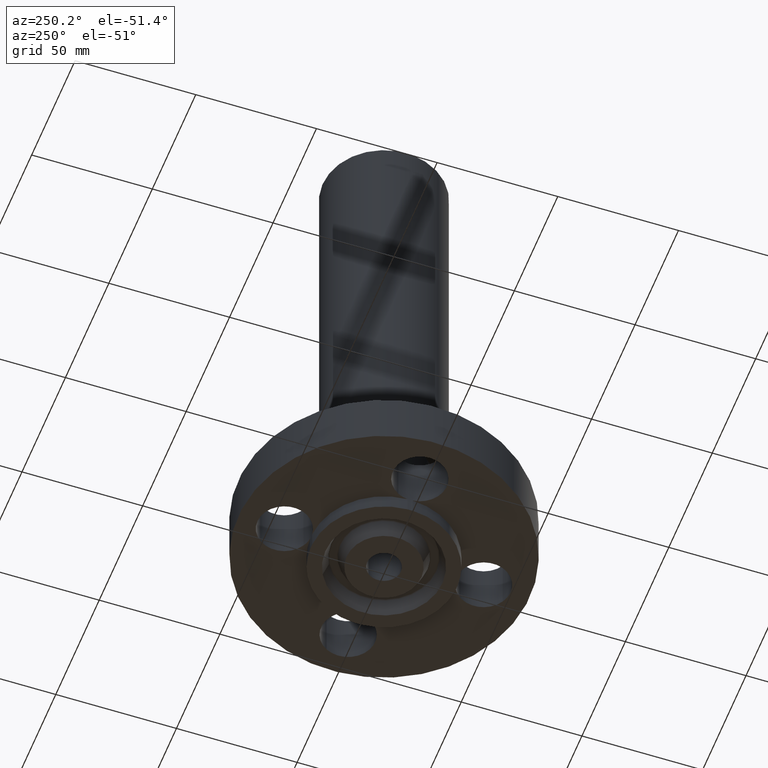
[diagram: clean part render]
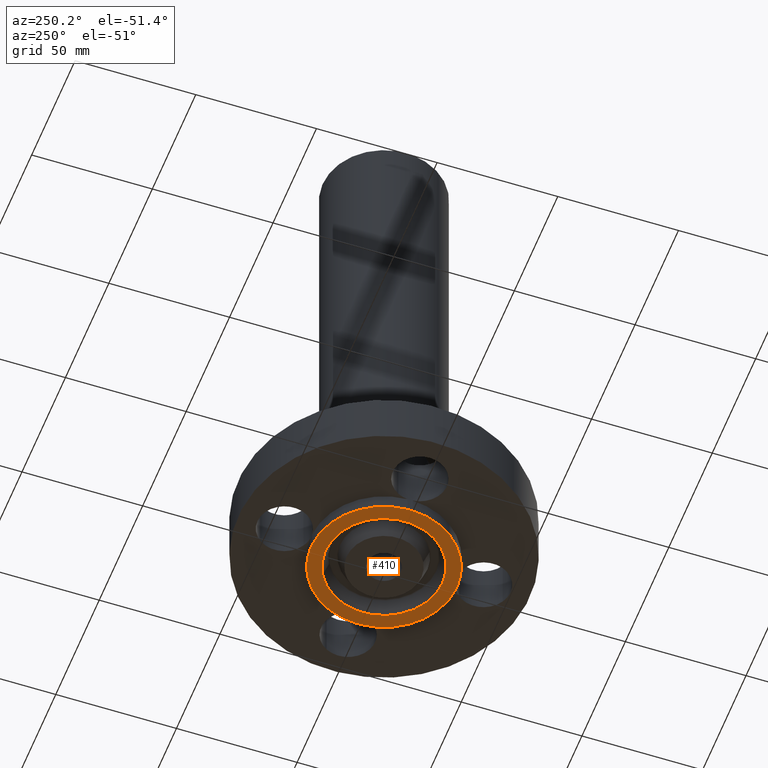
[diagram: same view with one face highlighted and labeled with its STEP entity id]
A machine part, auxiliary view. The second image highlights one B-rep face of the part: STEP entity #410.
In plain terms, the highlighted planar face has unit normal (0, 0, -1).
Its self-contained STEP definition (entity closure, byte-faithful):
#250=AXIS2_PLACEMENT_3D('Circle Axis2P3D',#248,#249,$) ;
#317=AXIS2_PLACEMENT_3D('Plane Axis2P3D',#314,#315,#316) ;
#321=AXIS2_PLACEMENT_3D('Circle Axis2P3D',#319,#320,$) ;
#330=AXIS2_PLACEMENT_3D('Circle Axis2P3D',#328,#329,$) ;
#337=AXIS2_PLACEMENT_3D('Circle Axis2P3D',#335,#336,$) ;
#344=AXIS2_PLACEMENT_3D('Circle Axis2P3D',#342,#343,$) ;
#351=AXIS2_PLACEMENT_3D('Circle Axis2P3D',#349,#350,$) ;
#358=AXIS2_PLACEMENT_3D('Circle Axis2P3D',#356,#357,$) ;
#365=AXIS2_PLACEMENT_3D('Circle Axis2P3D',#363,#364,$) ;
#370=AXIS2_PLACEMENT_3D('Circle Axis2P3D',#368,#369,$) ;
#377=AXIS2_PLACEMENT_3D('Circle Axis2P3D',#375,#376,$) ;
#394=AXIS2_PLACEMENT_3D('Circle Axis2P3D',#392,#393,$) ;
#403=AXIS2_PLACEMENT_3D('Circle Axis2P3D',#401,#402,$) ;
#245=CARTESIAN_POINT('Vertex',(1.186825,-0.0400333532821,-0.250000000001)) ;
#248=CARTESIAN_POINT('Axis2P3D Location',(1.62500000001,0.,-0.250000000001)) ;
#252=CARTESIAN_POINT('Vertex',(1.186825,0.0400333532821,-0.250000000001)) ;
#314=CARTESIAN_POINT('Axis2P3D Location',(0.,0.609500000002,-0.250000000001)) ;
#319=CARTESIAN_POINT('Axis2P3D Location',(0.,0.,-0.250000000001)) ;
#323=CARTESIAN_POINT('Vertex',(-0.0400333532821,-1.186825,-0.250000000001)) ;
#325=CARTESIAN_POINT('Vertex',(-0.569317827095,-1.04212929225,-0.250000000001)) ;
#328=CARTESIAN_POINT('Axis2P3D Location',(0.,0.,-0.250000000001)) ;
#332=CARTESIAN_POINT('Vertex',(-1.186825,-0.0400333532821,-0.250000000001)) ;
#335=CARTESIAN_POINT('Axis2P3D Location',(-1.62500000001,-1.39870617276E-016,-0.250000000001)) ;
#339=CARTESIAN_POINT('Vertex',(-1.186825,0.0400333532821,-0.250000000001)) ;
#342=CARTESIAN_POINT('Axis2P3D Location',(0.,0.,-0.250000000001)) ;
#346=CARTESIAN_POINT('Vertex',(-0.0400333532821,1.186825,-0.250000000001)) ;
#349=CARTESIAN_POINT('Axis2P3D Location',(-3.67160370348E-016,1.62500000001,-0.250000000001)) ;
#353=CARTESIAN_POINT('Vertex',(0.0400333532821,1.186825,-0.250000000001)) ;
#356=CARTESIAN_POINT('Axis2P3D Location',(0.,0.,-0.250000000001)) ;
#360=CARTESIAN_POINT('Vertex',(0.569317827095,1.04212929225,-0.250000000001)) ;
#363=CARTESIAN_POINT('Axis2P3D Location',(0.,0.,-0.250000000001)) ;
#368=CARTESIAN_POINT('Axis2P3D Location',(0.,0.,-0.250000000001)) ;
#372=CARTESIAN_POINT('Vertex',(0.0400333532821,-1.186825,-0.250000000001)) ;
#375=CARTESIAN_POINT('Axis2P3D Location',(-1.22386790116E-016,-1.62500000001,-0.250000000001)) ;
#392=CARTESIAN_POINT('Axis2P3D Location',(0.,0.,-0.250000000001)) ;
#396=CARTESIAN_POINT('Vertex',(0.457132251061,0.836774972766,-0.250000000001)) ;
#398=CARTESIAN_POINT('Vertex',(-0.457132251061,-0.836774972766,-0.250000000001)) ;
#401=CARTESIAN_POINT('Axis2P3D Location',(0.,0.,-0.250000000001)) ;
#249=DIRECTION('Axis2P3D Direction',(0.,-0.,0.0393700787402)) ;
#315=DIRECTION('Axis2P3D Direction',(0.,0.,-0.0393700787402)) ;
#316=DIRECTION('Axis2P3D XDirection',(0.0393700787402,0.,0.)) ;
#320=DIRECTION('Axis2P3D Direction',(0.,0.,-0.0393700787402)) ;
#329=DIRECTION('Axis2P3D Direction',(0.,0.,-0.0393700787402)) ;
#336=DIRECTION('Axis2P3D Direction',(0.,0.,-0.0393700787402)) ;
#343=DIRECTION('Axis2P3D Direction',(0.,0.,-0.0393700787402)) ;
#350=DIRECTION('Axis2P3D Direction',(0.,0.,-0.0393700787402)) ;
#357=DIRECTION('Axis2P3D Direction',(0.,0.,-0.0393700787402)) ;
#364=DIRECTION('Axis2P3D Direction',(0.,0.,-0.0393700787402)) ;
#369=DIRECTION('Axis2P3D Direction',(0.,0.,-0.0393700787402)) ;
#376=DIRECTION('Axis2P3D Direction',(0.,0.,-0.0393700787402)) ;
#393=DIRECTION('Axis2P3D Direction',(0.,0.,-0.0393700787402)) ;
#402=DIRECTION('Axis2P3D Direction',(0.,0.,-0.0393700787402)) ;
#381=ORIENTED_EDGE('',*,*,#327,.T.) ;
#382=ORIENTED_EDGE('',*,*,#334,.T.) ;
#383=ORIENTED_EDGE('',*,*,#341,.F.) ;
#384=ORIENTED_EDGE('',*,*,#348,.T.) ;
#385=ORIENTED_EDGE('',*,*,#355,.F.) ;
#386=ORIENTED_EDGE('',*,*,#362,.T.) ;
#387=ORIENTED_EDGE('',*,*,#367,.T.) ;
#388=ORIENTED_EDGE('',*,*,#254,.F.) ;
#389=ORIENTED_EDGE('',*,*,#374,.T.) ;
#390=ORIENTED_EDGE('',*,*,#379,.F.) ;
#407=ORIENTED_EDGE('',*,*,#400,.F.) ;
#408=ORIENTED_EDGE('',*,*,#405,.F.) ;
#409=FACE_BOUND('',#406,.T.) ;
#410=ADVANCED_FACE('PartBody',(#391,#409),#318,.T.) ;
#251=CIRCLE('generated circle',#250,0.440000000002) ;
#322=CIRCLE('generated circle',#321,1.1875) ;
#331=CIRCLE('generated circle',#330,1.1875) ;
#338=CIRCLE('generated circle',#337,0.440000000002) ;
#345=CIRCLE('generated circle',#344,1.1875) ;
#352=CIRCLE('generated circle',#351,0.440000000002) ;
#359=CIRCLE('generated circle',#358,1.1875) ;
#366=CIRCLE('generated circle',#365,1.1875) ;
#371=CIRCLE('generated circle',#370,1.1875) ;
#378=CIRCLE('generated circle',#377,0.440000000002) ;
#395=CIRCLE('generated circle',#394,0.953500000004) ;
#404=CIRCLE('generated circle',#403,0.953500000004) ;
#254=EDGE_CURVE('',#246,#253,#251,.F.) ;
#327=EDGE_CURVE('',#324,#326,#322,.T.) ;
#334=EDGE_CURVE('',#326,#333,#331,.T.) ;
#341=EDGE_CURVE('',#340,#333,#338,.T.) ;
#348=EDGE_CURVE('',#340,#347,#345,.T.) ;
#355=EDGE_CURVE('',#354,#347,#352,.T.) ;
#362=EDGE_CURVE('',#354,#361,#359,.T.) ;
#367=EDGE_CURVE('',#361,#253,#366,.T.) ;
#374=EDGE_CURVE('',#246,#373,#371,.T.) ;
#379=EDGE_CURVE('',#324,#373,#378,.T.) ;
#400=EDGE_CURVE('',#397,#399,#395,.T.) ;
#405=EDGE_CURVE('',#399,#397,#404,.T.) ;
#380=EDGE_LOOP('',(#381,#382,#383,#384,#385,#386,#387,#388,#389,#390)) ;
#406=EDGE_LOOP('',(#407,#408)) ;
#391=FACE_OUTER_BOUND('',#380,.T.) ;
#318=PLANE('',#317) ;
#246=VERTEX_POINT('',#245) ;
#253=VERTEX_POINT('',#252) ;
#324=VERTEX_POINT('',#323) ;
#326=VERTEX_POINT('',#325) ;
#333=VERTEX_POINT('',#332) ;
#340=VERTEX_POINT('',#339) ;
#347=VERTEX_POINT('',#346) ;
#354=VERTEX_POINT('',#353) ;
#361=VERTEX_POINT('',#360) ;
#373=VERTEX_POINT('',#372) ;
#397=VERTEX_POINT('',#396) ;
#399=VERTEX_POINT('',#398) ;